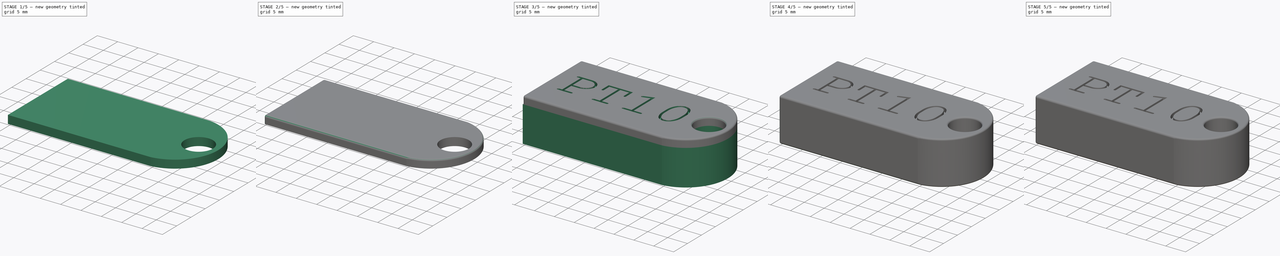
[diagram: build sequence overview — one tinted view per stage of 5, left to right]
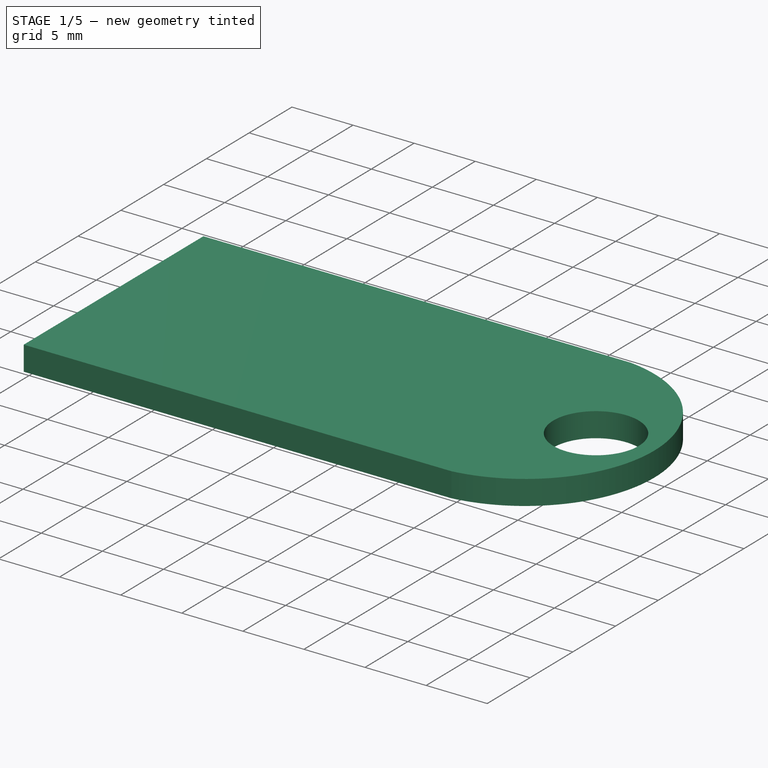
[diagram: stage 1 of 5 — iso view after this stage's code; geometry added in this stage tinted green]
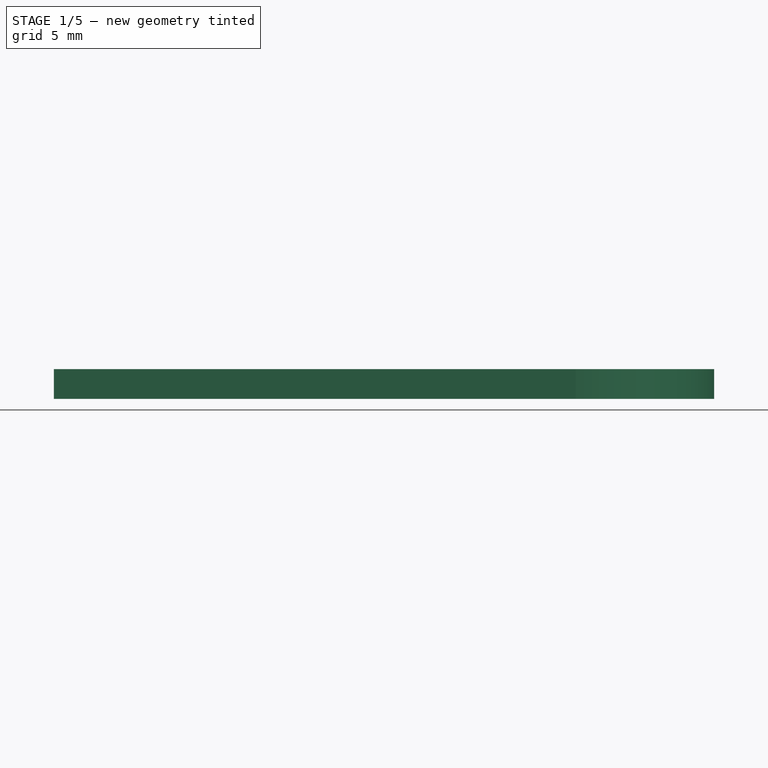
[diagram: stage 1 of 5 — front view after this stage's code; geometry added in this stage tinted green]
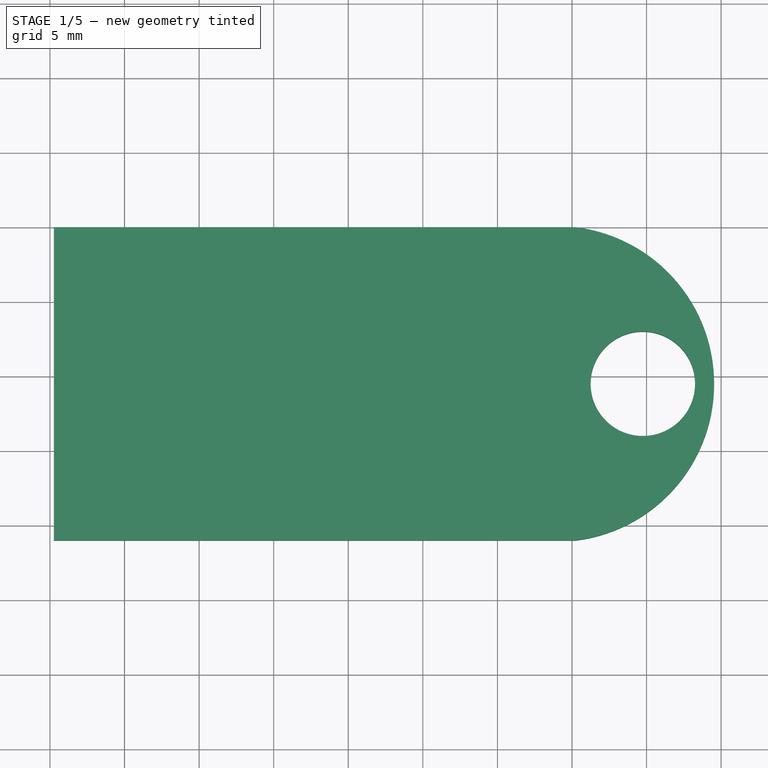
[diagram: stage 1 of 5 — top view after this stage's code; geometry added in this stage tinted green]
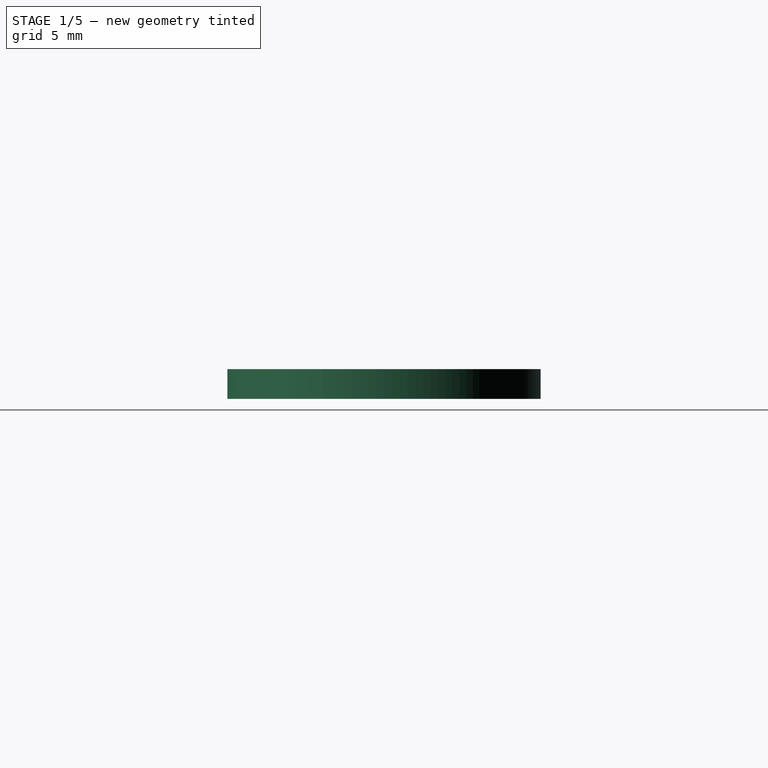
[diagram: stage 1 of 5 — right view after this stage's code; geometry added in this stage tinted green]
FCSTD DOCUMENT  (FreeCAD 0.19R24276 (Git))
Label: VaultBox1
License: All rights reserved
LicenseURL: http://en.wikipedia.org/wiki/All_rights_reserved
objects: PartDesign::Fillet×14, PartDesign::ShapeBinder×10, PartDesign::Line×7, Sketcher::SketchObject×5, PartDesign::Pad×3, PartDesign::Pocket×3, PartDesign::Body×2, PartDesign::Point×1, Part::Part2DObjectPython×1
note: 66 computed .brp shape members not serialized (recipe doc carries the construction recipe); baked Part::Feature solids carry a one-line shape summary decoded from their .brp

FEATURE [Sketcher::SketchObject] Sketch
  FullyConstrained = false
  MapMode = 5
  Support = -> [XY_Plane]
  sketch-geometry (11):
    g0: LineSegment StartX=0 StartY=19 StartZ=0 EndX=0 EndY=0 EndZ=0
    g1: LineSegment StartX=0.0308094 StartY=9.5 StartZ=0 EndX=9.53081 EndY=9.5 EndZ=0
    g2: Circle CenterX=4.75001 CenterY=9.5 CenterZ=0 NormalX=0 NormalY=0 NormalZ=1 AngleXU=0 Radius=3.5
    g3: LineSegment StartX=-34.7385 StartY=20 StartZ=0 EndX=0.261512 EndY=20 EndZ=0
    g4: LineSegment StartX=0.261512 StartY=-1 StartZ=0 EndX=-34.7385 EndY=-1 EndZ=0
    g5: LineSegment StartX=-34.7385 StartY=-1 StartZ=0 EndX=-34.7385 EndY=20 EndZ=0
    g6: LineSegment StartX=1.48918e-05 StartY=9.5 StartZ=0 EndX=-34.7385 EndY=9.5 EndZ=0
    g7: LineSegment StartX=-34 StartY=19 StartZ=0 EndX=-34.7385 EndY=20 EndZ=0
    g8: LineSegment StartX=-34.7385 StartY=20 StartZ=0 EndX=-34.7385 EndY=19.2427 EndZ=0
    g9: LineSegment StartX=-34.7385 StartY=19.2427 StartZ=0 EndX=-33.9812 EndY=19.2427 EndZ=0
    g10: ArcOfCircle CenterX=-1.05089 CenterY=9.5 CenterZ=0 NormalX=0 NormalY=0 NormalZ=1 AngleXU=0 Radius=10.5817 StartAngle=4.83674 EndAngle=7.72964
  constraints (25):
    c: Vertical(g0)
    c: DistanceY(g0,g0) = 19
    c: Coincident(g0,g-1)
    c: DistanceX(g1,g1) = 9.5
    c: Perpendicular(g0,g1)
    c: Radius(g2) = 3.5
    c: Coincident(g4,g5)
    c: Coincident(g5,g3)
    c: Horizontal(g3)
    c: Horizontal(g4)
    c: Vertical(g5)
    c: DistanceY(g5,g5) = 21
    c: Symmetric(g3,g4,g6)
    c: Vertical(g8)
    c: Coincident(g9,g8)
    c: Horizontal(g9)
    c: Equal(g9,g8)
    c: Coincident(g7,g8)
    c: Coincident(g3,g7)
    c: DistanceX(g3,g3) = 35
    c: Equal(g4,g3)
    c: Coincident(g10,g3)
    c: Coincident(g10,g4)
    c: PointOnObject(g1,g10)
    c: Perpendicular(g6,g5) = 4.71239
FEATURE [PartDesign::Pad] Pad
  Direction = (1,1,1)
  Length = 9
  Length2 = 100
  Profile = -> Sketch
  Type = 0
FEATURE [Sketcher::SketchObject] Sketch001
  ExternalGeometry = -> [Pad]
  FullyConstrained = true
  MapMode = 5
  Placement = pos=(0,0,9) rot=(0,0,1;0rad)
  Support = -> [Pad]
  sketch-geometry (6):
    g0: LineSegment StartX=-33.7385 StartY=19 StartZ=0 EndX=0.261512 EndY=19 EndZ=0
    g1: LineSegment StartX=0.261512 StartY=19 StartZ=0 EndX=0.261512 EndY=0 EndZ=0
    g2: LineSegment StartX=0.261512 StartY=0 StartZ=0 EndX=-33.7385 EndY=0 EndZ=0
    g3: LineSegment StartX=-33.7385 StartY=0 StartZ=0 EndX=-33.7385 EndY=19 EndZ=0
    g4: LineSegment StartX=-33.7385 StartY=19 StartZ=0 EndX=-34.7385 EndY=20 EndZ=0
    g5: LineSegment StartX=-34.7385 StartY=-1 StartZ=0 EndX=-33.7385 EndY=0 EndZ=0
  constraints (16):
    c: Coincident(g0,g1)
    c: Coincident(g1,g2)
    c: Coincident(g2,g3)
    c: Coincident(g3,g0)
    c: Horizontal(g0)
    c: Horizontal(g2)
    c: Vertical(g1)
    c: Vertical(g3)
    c: Coincident(g4,g0)
    c: Coincident(g4,g-3)
    c: Coincident(g5,g-3)
    c: Coincident(g5,g2)
    c: DistanceX(g4,g4) = 1
    c: DistanceY(g4,g4) = 1
    c: DistanceY(g5,g5) = 1
    c: DistanceX(g0,g0) = 34
FEATURE [PartDesign::Pocket] Pocket
  BaseFeature = -> Pad
  Length = 7
  Length2 = 100
  Profile = -> Sketch001
  Type = 0
FEATURE [Sketcher::SketchObject] Sketch002
  ExternalGeometry = -> [Pocket]
  FullyConstrained = true
  MapMode = 5
  Placement = pos=(-34.7385,0,0) rot=(0.57735,-0.57735,-0.57735;2.0944rad)
  Support = -> [Pocket]
  sketch-geometry (7):
    g0: LineSegment StartX=-13.5 StartY=7.5 StartZ=0 EndX=-5.5 EndY=7.5 EndZ=0
    g1: LineSegment StartX=-5.5 StartY=7.5 StartZ=0 EndX=-6 EndY=3 EndZ=0
    g2: LineSegment StartX=-6 StartY=3 StartZ=0 EndX=-13 EndY=3 EndZ=0
    g3: LineSegment StartX=-13 StartY=3 StartZ=0 EndX=-13.5 EndY=7.5 EndZ=0
    g4: LineSegment StartX=-13 StartY=3 StartZ=0 EndX=-20 EndY=0 EndZ=0
    g5: LineSegment StartX=-20 StartY=9 StartZ=0 EndX=-9.5 EndY=7.5 EndZ=0
    g6: LineSegment StartX=1 StartY=9 StartZ=0 EndX=-9.5 EndY=7.5 EndZ=0
  constraints (18):
    c: Coincident(g0,g1)
    c: Coincident(g1,g2)
    c: Coincident(g2,g3)
    c: Coincident(g3,g0)
    c: Horizontal(g0)
    c: Horizontal(g2)
    c: Coincident(g4,g2)
    c: Coincident(g4,g-4)
    c: DistanceY(g4,g4) = 3
    c: DistanceY(g3,g3) = 4.5
    c: DistanceX(g0,g0) = 8
    c: Coincident(g5,g-4)
    c: Coincident(g6,g-5)
    c: Coincident(g6,g5)
    c: Equal(g6,g5)
    c: Symmetric(g0,g0,g5)
    c: DistanceX(g2,g2) = 7
    c: Equal(g3,g1)
FEATURE [PartDesign::Pocket] Pocket001
  BaseFeature = -> Pocket
  Length = 2
  Length2 = 100
  Profile = -> Sketch002
  Type = 0
FEATURE [PartDesign::ShapeBinder] ReferencePocket001
  Support = -> [Pocket001]
  TraceSupport = false
FEATURE [PartDesign::ShapeBinder] ReferencePocket001001
  Placement = pos=(0,0,9) rot=(0,0,1;0rad)
  Support = -> [Pocket001]
  TraceSupport = false
FEATURE [PartDesign::Line] DatumLine004
  AttacherType = Attacher::AttachEngineLine
  Length = 20
  MapMode = 29
  Placement = pos=(-34.7385,0,9) rot=(0,0.707107,0.707107;3.14159rad)
  ResizeMode = 0
  Support = -> [ReferencePocket001001]
FEATURE [PartDesign::ShapeBinder] ReferencePocket001002
  Placement = pos=(0,0,9) rot=(0,0,1;0rad)
  Support = -> [Pocket001]
  TraceSupport = false
FEATURE [PartDesign::Line] DatumLine
  AttacherType = Attacher::AttachEngineLine
  Length = 20
  MapMode = 29
  Placement = pos=(0,-1,9) rot=(0.57735,-0.57735,-0.57735;2.0944rad)
  ResizeMode = 0
  Support = -> [ReferencePocket001002]
FEATURE [PartDesign::ShapeBinder] ReferencePocket001003
  Placement = pos=(0,0,9) rot=(0,0,1;0rad)
  Support = -> [Pocket001]
  TraceSupport = false
FEATURE [PartDesign::Line] DatumLine005
  AttacherType = Attacher::AttachEngineLine
  Length = 20
  MapMode = 29
  Placement = pos=(0,20,9) rot=(0.57735,0.57735,0.57735;2.0944rad)
  ResizeMode = 0
  Support = -> [ReferencePocket001003]
FEATURE [PartDesign::ShapeBinder] ReferencePocket001004
  Placement = pos=(0,0,9) rot=(0,0,1;0rad)
  Support = -> [Pocket001]
  TraceSupport = false
FEATURE [PartDesign::Point] DatumPoint
  AttacherType = Attacher::AttachEnginePoint
  MapMode = 36
  Placement = pos=(4.75001,9.5,9) rot=(1,0,0;1.5708rad)
  Support = -> [ReferencePocket001004]
FEATURE [Sketcher::SketchObject] Sketch003
  ExternalGeometry = -> [DatumLine004,DatumLine005,ReferencePocket001,DatumPoint]
  FullyConstrained = false
  MapMode = 5
  Placement = pos=(0,0,9) rot=(0,0,1;0rad)
  Support = -> [ReferencePocket001]
  sketch-geometry (5):
    g0: LineSegment StartX=-34.7385 StartY=20 StartZ=0 EndX=0.261512 EndY=20 EndZ=0
    g1: LineSegment StartX=-34.7385 StartY=20 StartZ=0 EndX=-34.7385 EndY=-1 EndZ=0
    g2: LineSegment StartX=-34.7385 StartY=-1 StartZ=0 EndX=0.261512 EndY=-1 EndZ=0
    g3: ArcOfCircle CenterX=-1.05089 CenterY=9.5 CenterZ=0 NormalX=0 NormalY=0 NormalZ=1 AngleXU=0 Radius=10.5817 StartAngle=4.83674 EndAngle=7.72964
    g4: Circle CenterX=4.75001 CenterY=9.5 CenterZ=0 NormalX=0 NormalY=0 NormalZ=1 AngleXU=0 Radius=3.5
  constraints (9):
    c: Coincident(g1,g0)
    c: Coincident(g1,g-6)
    c: Vertical(g1)
    c: Coincident(g2,g1)
    c: Coincident(g2,g-6)
    c: Coincident(g3,g0)
    c: Coincident(g3,g2)
    c: Tangent(g3,g-5)
    c: Coincident(g4,g-8)
FEATURE [PartDesign::ShapeBinder] ReferencePocket001005
  Placement = pos=(0,0,9) rot=(0,0,1;0rad)
  Support = -> [Pocket001]
  TraceSupport = false
FEATURE [PartDesign::Pad] Pad001
  Direction = (1,1,1)
  Length = 2
  Length2 = 100
  Profile = -> Sketch003
  Type = 0
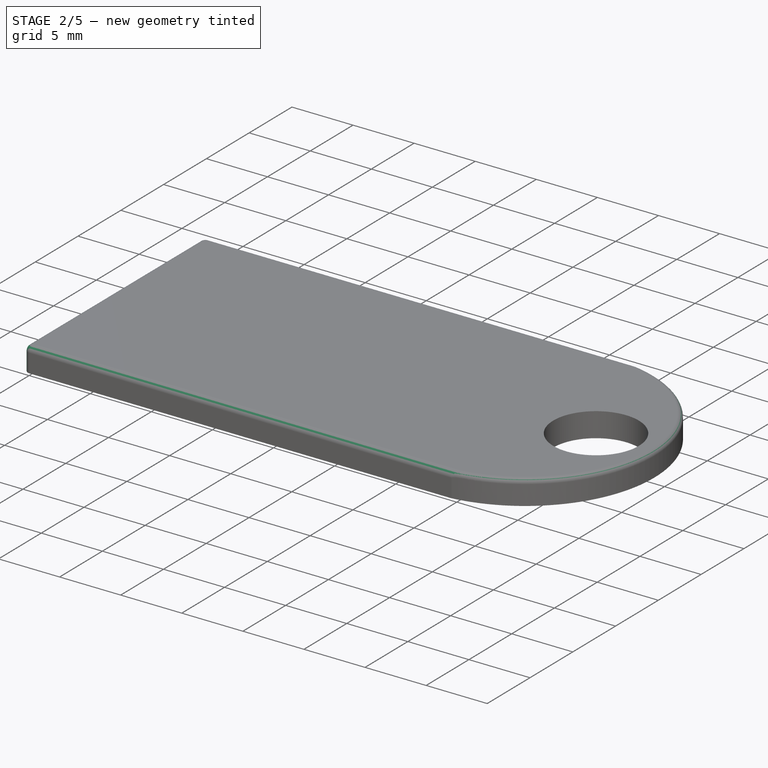
[diagram: stage 2 of 5 — iso view after this stage's code; geometry added in this stage tinted green]
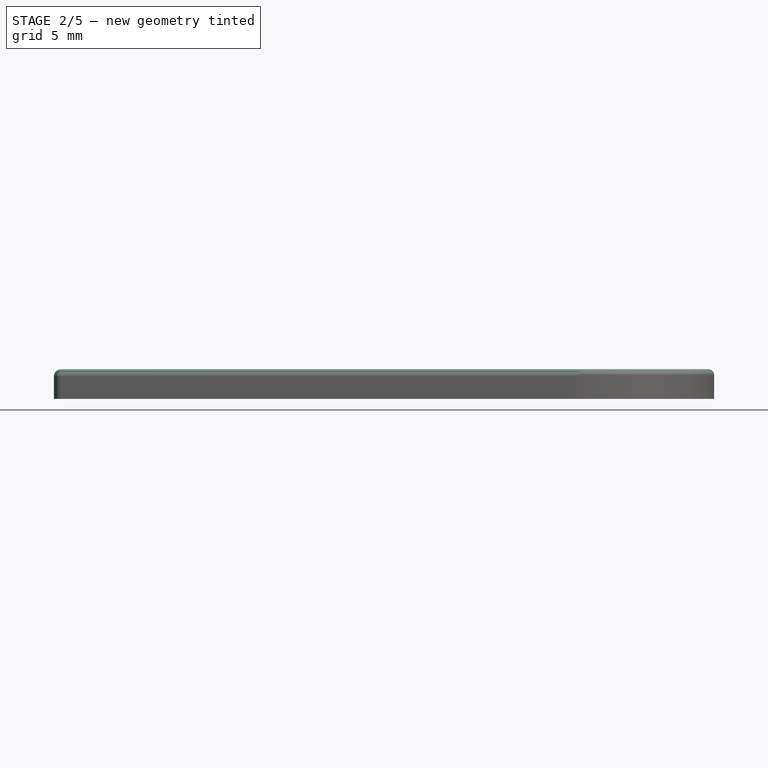
[diagram: stage 2 of 5 — front view after this stage's code; geometry added in this stage tinted green]
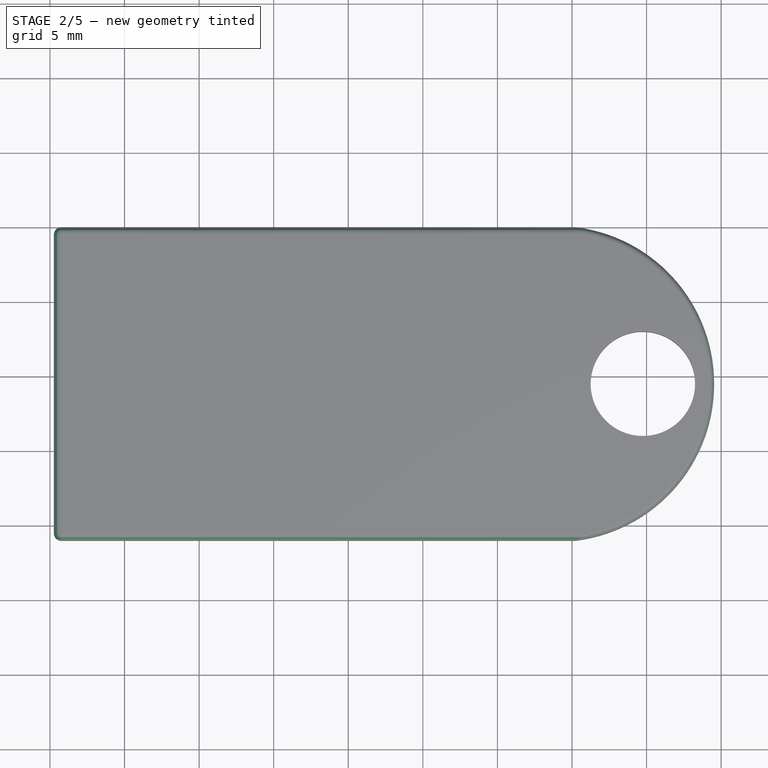
[diagram: stage 2 of 5 — top view after this stage's code; geometry added in this stage tinted green]
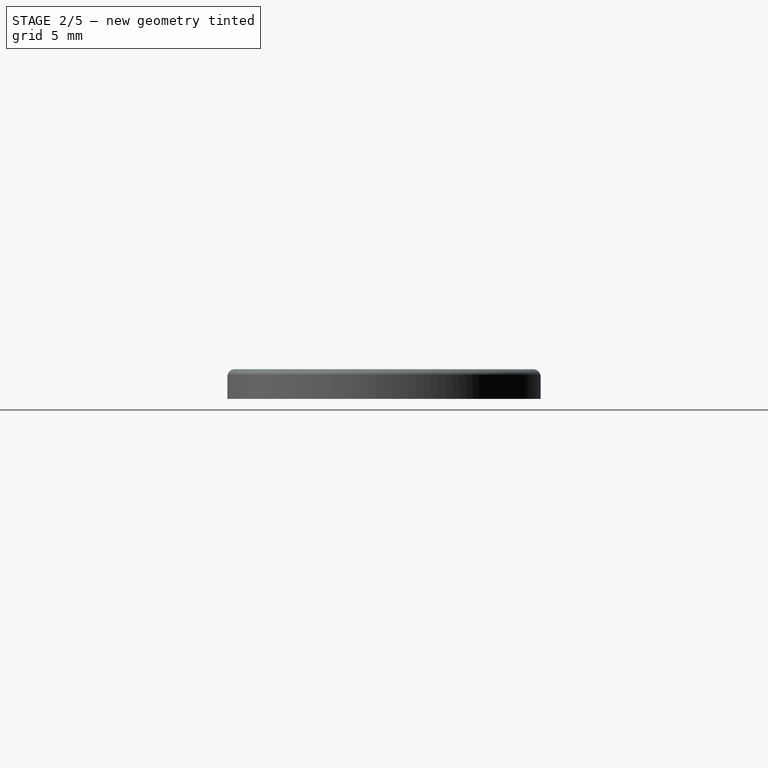
[diagram: stage 2 of 5 — right view after this stage's code; geometry added in this stage tinted green]
FEATURE [PartDesign::Fillet] Fillet
  Base = -> Pad001 [Edge12]
  BaseFeature = -> Pad001
  Radius = 0.5
  SupportTransform = false
FEATURE [PartDesign::Fillet] Fillet001
  Base = -> Fillet [Edge15]
  BaseFeature = -> Fillet
  Radius = 0.5
  SupportTransform = false
FEATURE [PartDesign::Fillet] Fillet002
  Base = -> Fillet001 [Edge12]
  BaseFeature = -> Fillet001
  Radius = 0.5
  SupportTransform = false
FEATURE [PartDesign::Fillet] Fillet003
  Base = -> Fillet002 [Edge24]
  BaseFeature = -> Fillet002
  Radius = 0.4
  SupportTransform = false
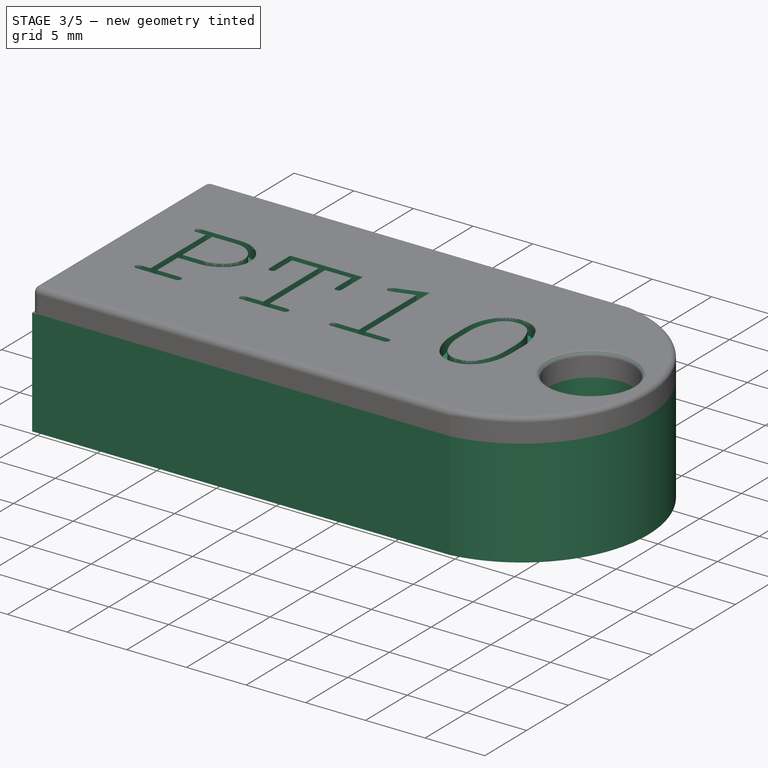
[diagram: stage 3 of 5 — iso view after this stage's code; geometry added in this stage tinted green]
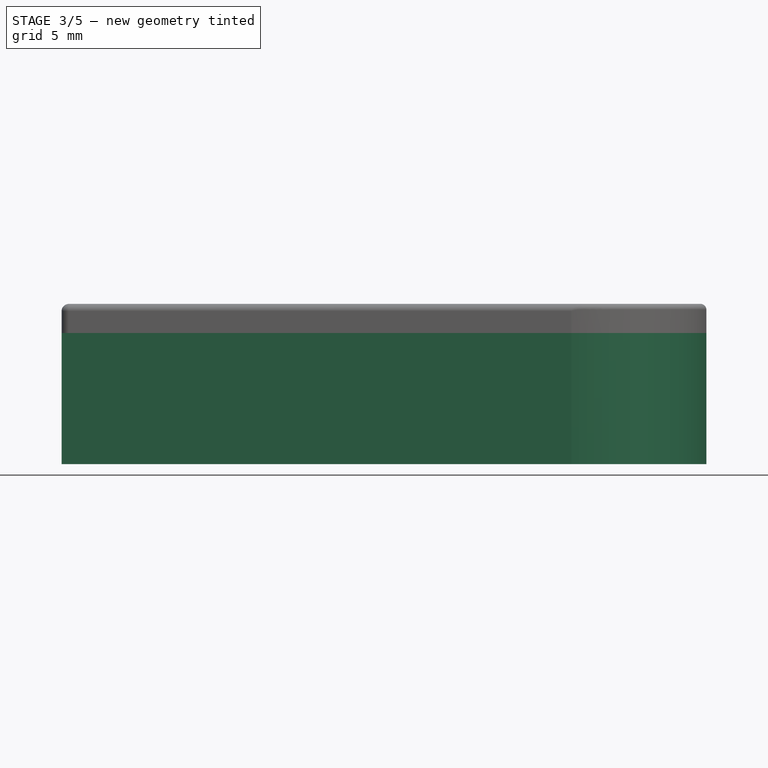
[diagram: stage 3 of 5 — front view after this stage's code; geometry added in this stage tinted green]
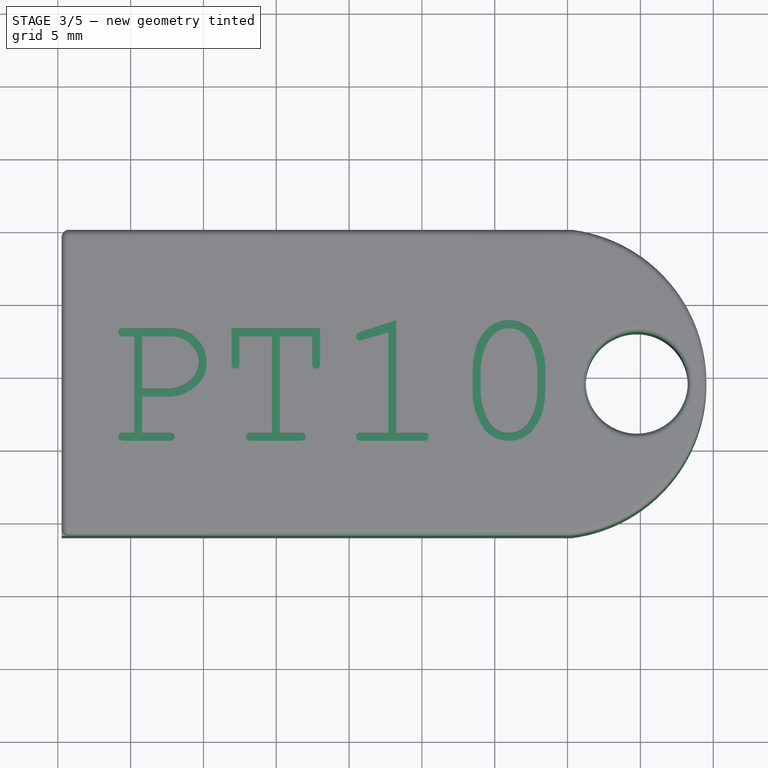
[diagram: stage 3 of 5 — top view after this stage's code; geometry added in this stage tinted green]
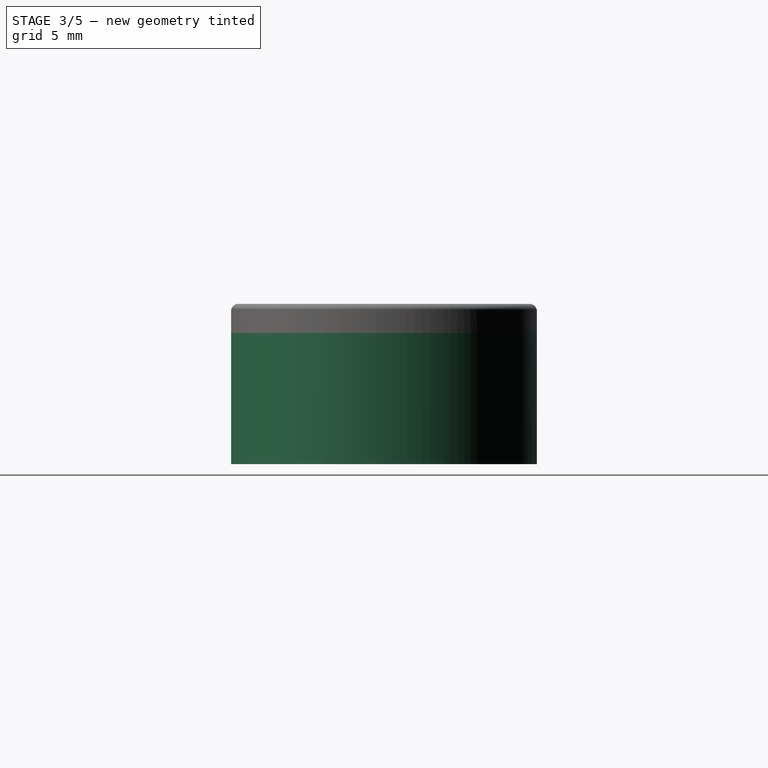
[diagram: stage 3 of 5 — right view after this stage's code; geometry added in this stage tinted green]
FEATURE [PartDesign::Fillet] Fillet004
  Base = -> Fillet003 [Edge31]
  BaseFeature = -> Fillet003
  Radius = 0.4
  SupportTransform = false
FEATURE [PartDesign::Fillet] Fillet005
  Base = -> Pocket001 [Edge10]
  BaseFeature = -> Pocket001
  Radius = 0.5
  SupportTransform = false
FEATURE [PartDesign::Body] Body
  Group = -> [Sketch,Pad,Sketch001,Pocket,Sketch002,Pocket001,Fillet005,Fillet006,Fillet007,Fillet008,Fillet009,Fillet010,Fillet011,Fillet012,Fillet013]
  Origin = -> Origin
  Tip = -> Fillet013
FEATURE [Part::Part2DObjectPython] ShapeString  # Draft 2D object (typed FeaturePython)
  FontFile = <path>
  Placement = pos=(-32,5.5,11) rot=(0,0,1;0rad)
  Size = 10
  String = PT10
  Tracking = 0
FEATURE [PartDesign::Pocket] Pocket002
  BaseFeature = -> Fillet004
  Length = 1
  Length2 = 100
  Profile = -> ShapeString
  Type = 0
FEATURE [PartDesign::ShapeBinder] CopyFillet013
  Placement = pos=(0,0,9) rot=(0,0,1;0rad)
  TraceSupport = false
FEATURE [PartDesign::Line] DatumLine006
  AttacherType = Attacher::AttachEngineLine
  Length = 20
  MapMode = 29
  Placement = pos=(0,19,9) rot=(0.57735,0.57735,0.57735;2.0944rad)
  ResizeMode = 0
  Support = -> [CopyFillet013]
FEATURE [PartDesign::ShapeBinder] CopyFillet013001
  Placement = pos=(0,0,9) rot=(0,0,1;0rad)
  TraceSupport = false
FEATURE [PartDesign::Line] DatumLine007
  AttacherType = Attacher::AttachEngineLine
  Length = 20
  MapMode = 29
  Placement = pos=(-33.7385,0,9) rot=(0,0.707107,0.707107;3.14159rad)
  ResizeMode = 0
  Support = -> [CopyFillet013001]
FEATURE [PartDesign::ShapeBinder] CopyFillet013002
  Placement = pos=(0,0,9) rot=(0,0,1;0rad)
  TraceSupport = false
FEATURE [PartDesign::Line] DatumLine008
  AttacherType = Attacher::AttachEngineLine
  Length = 20
  MapMode = 29
  Placement = pos=(0.261512,0,9) rot=(1,0,0;1.5708rad)
  ResizeMode = 0
  Support = -> [CopyFillet013002]
FEATURE [PartDesign::ShapeBinder] CopyFillet013003
  Placement = pos=(0,0,9) rot=(0,0,1;0rad)
  TraceSupport = false
FEATURE [PartDesign::Line] DatumLine009
  AttacherType = Attacher::AttachEngineLine
  Length = 20
  MapMode = 29
  Placement = pos=(0,0,9) rot=(0.57735,-0.57735,-0.57735;2.0944rad)
  ResizeMode = 0
  Support = -> [CopyFillet013003]
FEATURE [Sketcher::SketchObject] Sketch004
  ExternalGeometry = -> [DatumLine007,DatumLine009,DatumLine008,DatumLine006]
  FullyConstrained = true
  MapMode = 5
  Placement = pos=(0,0,9) rot=(1,0,0;3.14159rad)
  Support = -> [Pocket002]
  sketch-geometry (13):
    g0: LineSegment StartX=-33.2385 StartY=-0.5 StartZ=0 EndX=-0.238488 EndY=-0.5 EndZ=0
    g1: LineSegment StartX=-0.238488 StartY=-0.5 StartZ=0 EndX=-0.238488 EndY=-18.5 EndZ=0
    g2: LineSegment StartX=-0.238488 StartY=-18.5 StartZ=0 EndX=-33.2385 EndY=-18.5 EndZ=0
    g3: LineSegment StartX=-33.2385 StartY=-18.5 StartZ=0 EndX=-33.2385 EndY=-0.5 EndZ=0
    g4: LineSegment StartX=-33.2385 StartY=-0.5 StartZ=0 EndX=-33.7385 EndY=0 EndZ=0
    g5: LineSegment StartX=-0.238488 StartY=-0.5 StartZ=0 EndX=0.261512 EndY=0 EndZ=0
    g6: LineSegment StartX=-0.238488 StartY=-18.5 StartZ=0 EndX=0.261512 EndY=-19 EndZ=0
    g7: LineSegment StartX=-32.2385 StartY=-1.5 StartZ=0 EndX=-1.23849 EndY=-1.5 EndZ=0
    g8: LineSegment StartX=-1.23849 StartY=-1.5 StartZ=0 EndX=-1.23849 EndY=-17.5 EndZ=0
    g9: LineSegment StartX=-1.23849 StartY=-17.5 StartZ=0 EndX=-32.2385 EndY=-17.5 EndZ=0
    g10: LineSegment StartX=-32.2385 StartY=-17.5 StartZ=0 EndX=-32.2385 EndY=-1.5 EndZ=0
    g11: LineSegment StartX=-1.23849 StartY=-1.5 StartZ=0 EndX=-0.238488 EndY=-0.5 EndZ=0
    g12: LineSegment StartX=-33.2385 StartY=-18.5 StartZ=0 EndX=-32.2385 EndY=-17.5 EndZ=0
  constraints (37):
    c: Coincident(g0,g1)
    c: Coincident(g1,g2)
    c: Coincident(g2,g3)
    c: Coincident(g3,g0)
    c: Horizontal(g0)
    c: Horizontal(g2)
    c: Vertical(g1)
    c: Vertical(g3)
    c: Coincident(g4,g0)
    c: PointOnObject(g4,g-1)
    c: PointOnObject(g4,g-3)
    c: DistanceX(g4,g4) = 0.5
    c: DistanceY(g4,g4) = 0.5
    c: Coincident(g5,g0)
    c: PointOnObject(g5,g-5)
    c: PointOnObject(g5,g-4)
    c: DistanceX(g5,g5) = 0.5
    c: Coincident(g6,g1)
    c: PointOnObject(g6,g-6)
    c: PointOnObject(g6,g-5)
    c: DistanceY(g6,g6) = 0.5
    c: Coincident(g7,g8)
    c: Coincident(g8,g9)
    c: Coincident(g9,g10)
    c: Coincident(g10,g7)
    c: Horizontal(g7)
    c: Horizontal(g9)
    c: Vertical(g8)
    c: Vertical(g10)
    c: Coincident(g11,g7)
    c: Coincident(g11,g0)
    c: Coincident(g12,g2)
    c: Coincident(g12,g9)
    c: DistanceY(g12,g12) = 1
    c: DistanceX(g12,g12) = 1
    c: DistanceX(g11,g11) = 1
    c: DistanceY(g11,g11) = 1
FEATURE [PartDesign::Pad] Pad002
  BaseFeature = -> Pocket002
  Direction = (1,1,1)
  Length = 1
  Length2 = 100
  Profile = -> Sketch004
  Type = 0
FEATURE [PartDesign::Body] Body001  label="Top"
  Group = -> [ReferencePocket001,Sketch003,DatumLine004,ReferencePocket001001,DatumLine,ReferencePocket001002,DatumLine005,ReferencePocket001003,DatumPoint,ReferencePocket001004,ReferencePocket001005,Pad001,Fillet,Fillet001,Fillet002,Fillet003,Fillet004,ShapeString,Pocket002,DatumLine006,CopyFillet013,DatumLine007,CopyFillet013001,DatumLine008,CopyFillet013002,DatumLine009,CopyFillet013003,Sketch004,Pad002]
  Origin = -> Origin001
  Tip = -> Pad002
note: 1 file-system path scrubbed to <path> (originals preserved in the JSON sidecar)
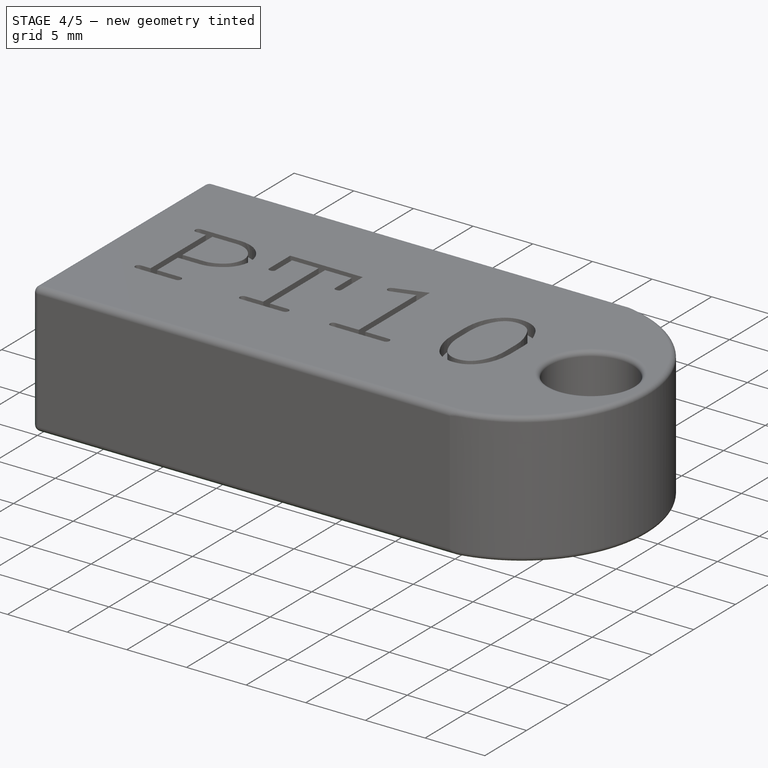
[diagram: stage 4 of 5 — iso view after this stage's code; geometry added in this stage tinted green]
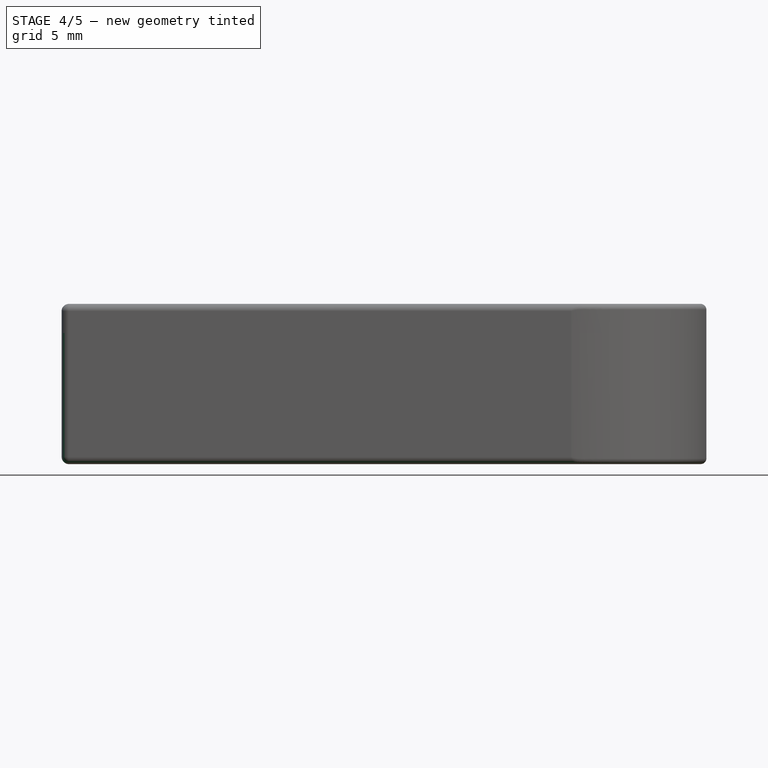
[diagram: stage 4 of 5 — front view after this stage's code; geometry added in this stage tinted green]
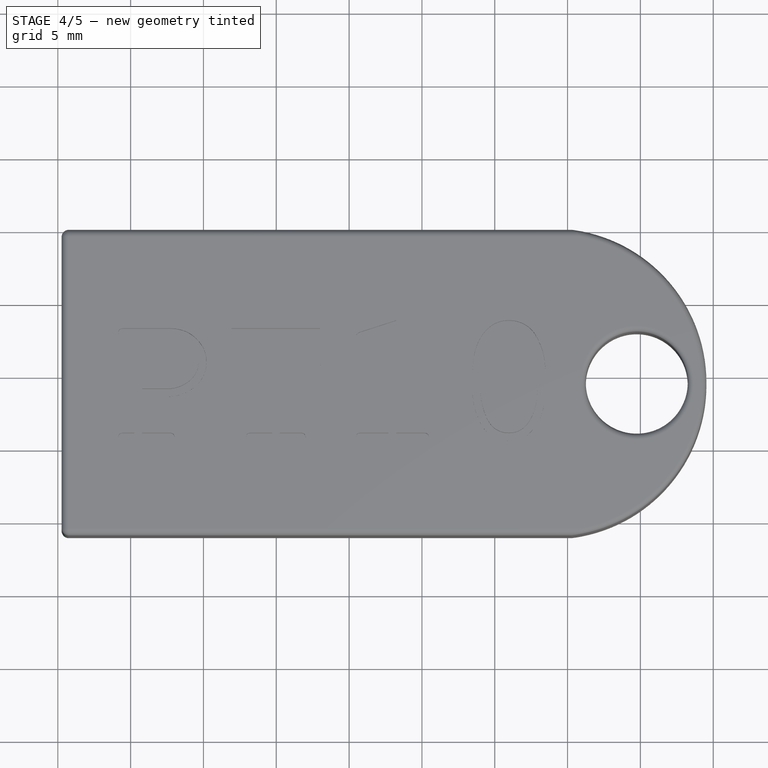
[diagram: stage 4 of 5 — top view after this stage's code; geometry added in this stage tinted green]
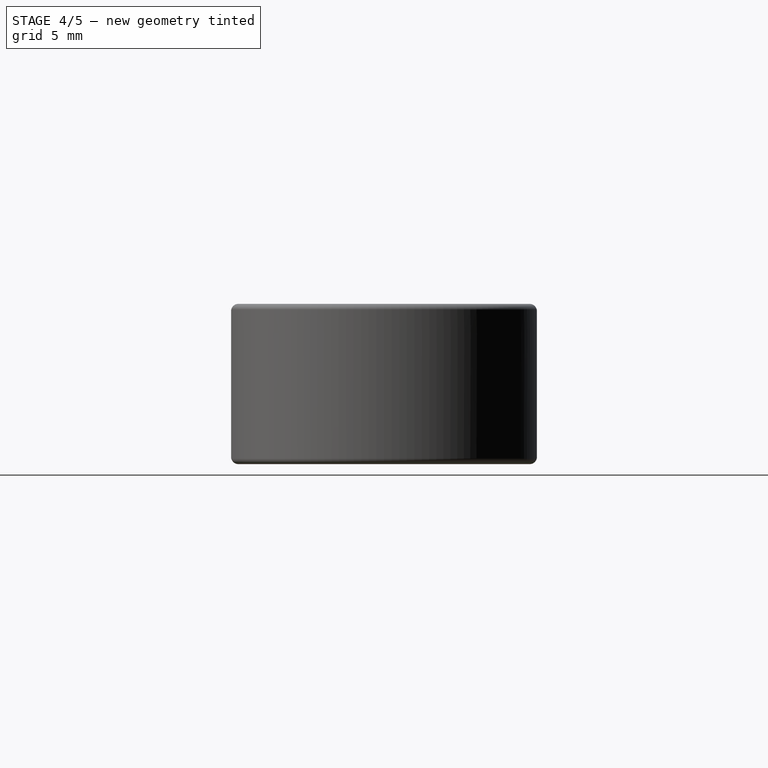
[diagram: stage 4 of 5 — right view after this stage's code; geometry added in this stage tinted green]
FEATURE [PartDesign::Fillet] Fillet006
  Base = -> Fillet005 [Edge11]
  BaseFeature = -> Fillet005
  Radius = 0.5
  SupportTransform = false
FEATURE [PartDesign::Fillet] Fillet007
  Base = -> Fillet006 [Edge23]
  BaseFeature = -> Fillet006
  Radius = 0.5
  SupportTransform = false
FEATURE [PartDesign::Fillet] Fillet008
  Base = -> Fillet007 [Edge36]
  BaseFeature = -> Fillet007
  Radius = 0.4
  SupportTransform = false
FEATURE [PartDesign::Fillet] Fillet009
  Base = -> Fillet008 [Edge39]
  BaseFeature = -> Fillet008
  Radius = 0.4
  SupportTransform = false
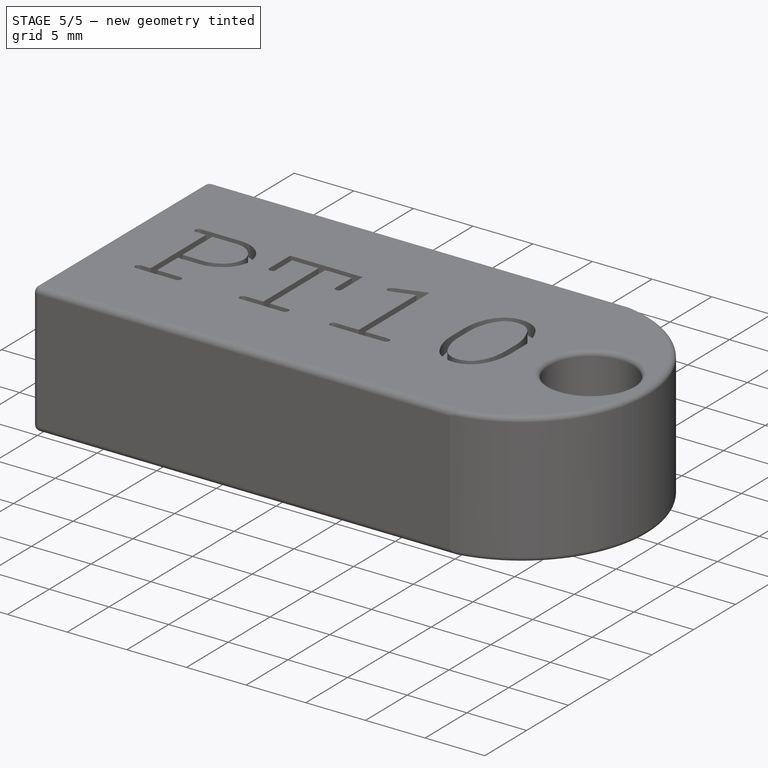
[diagram: stage 5 of 5 — iso view after this stage's code; geometry added in this stage tinted green]
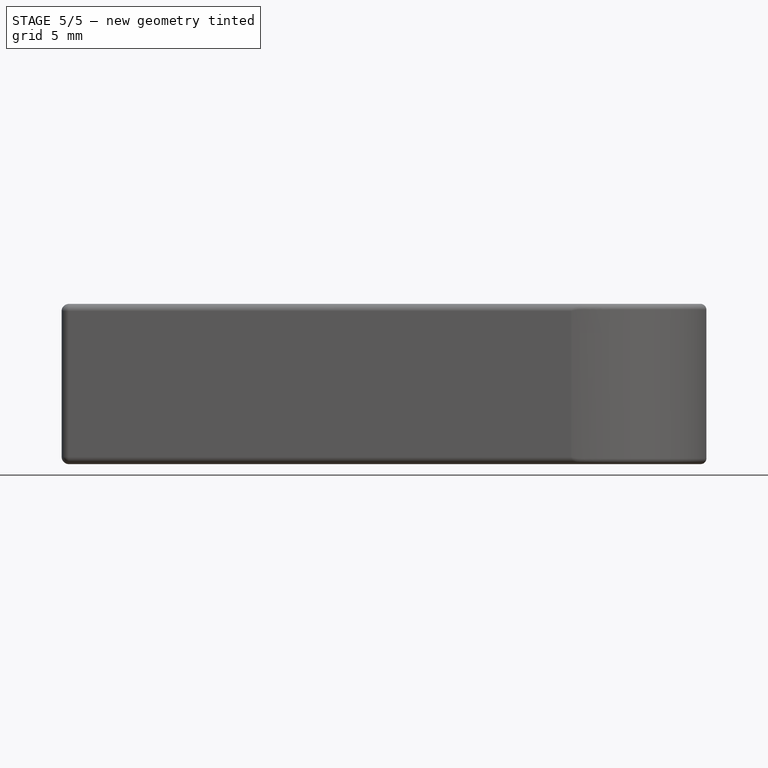
[diagram: stage 5 of 5 — front view after this stage's code; geometry added in this stage tinted green]
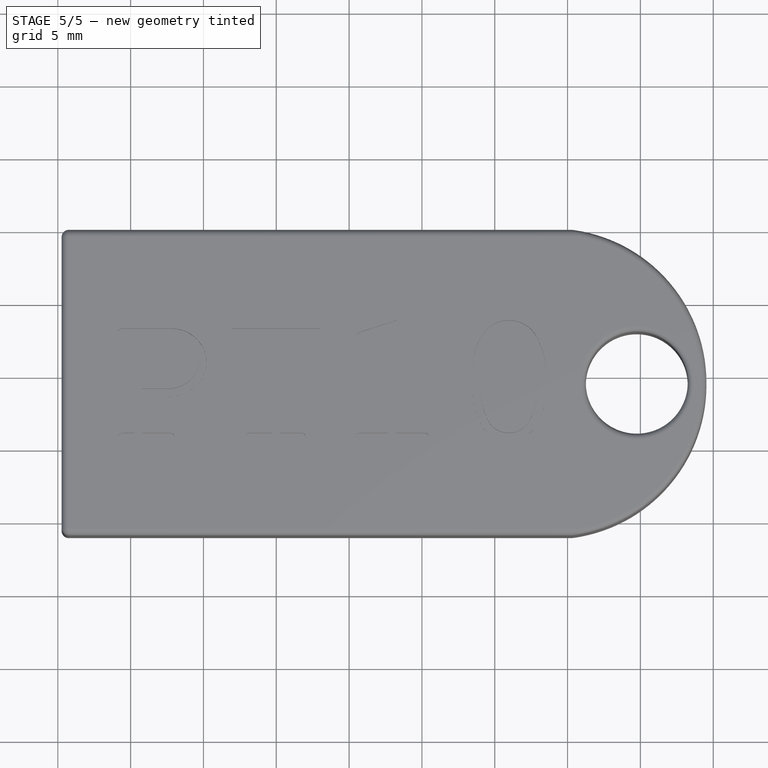
[diagram: stage 5 of 5 — top view after this stage's code; geometry added in this stage tinted green]
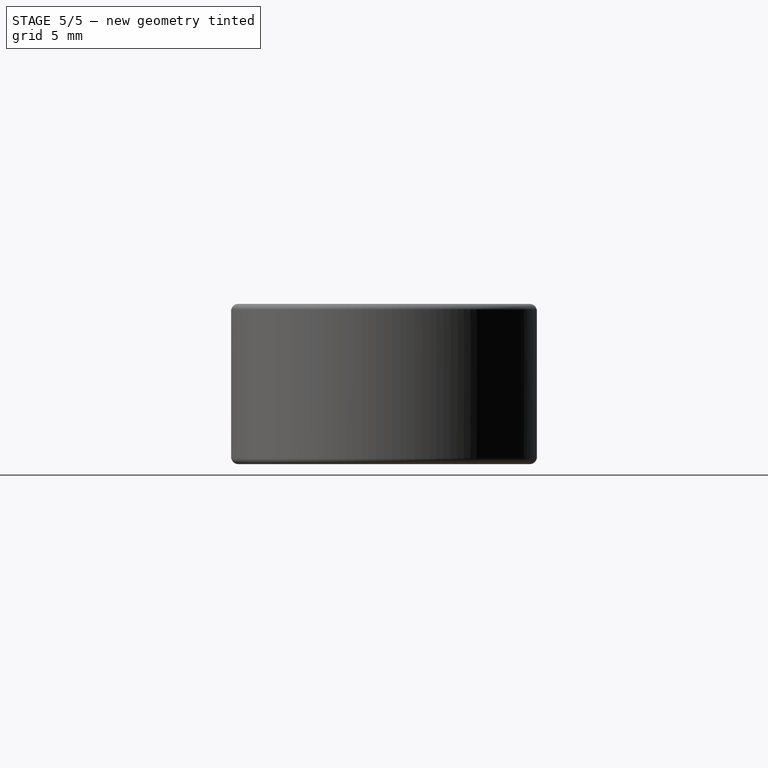
[diagram: stage 5 of 5 — right view after this stage's code; geometry added in this stage tinted green]
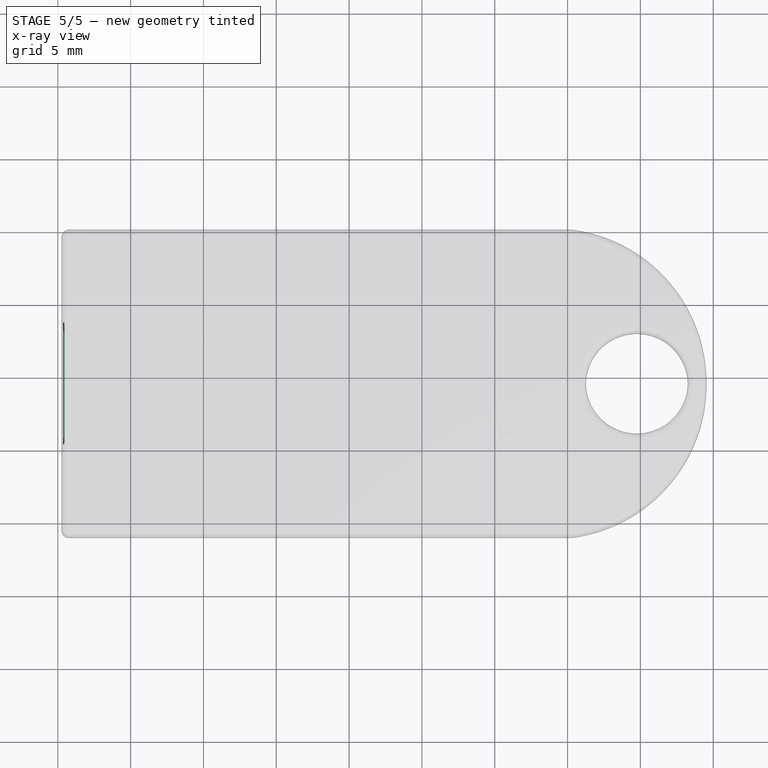
[diagram: stage 5 of 5 — x-ray composite at the top view; earlier geometry ghosted, this stage's added geometry solid]
FEATURE [PartDesign::Fillet] Fillet010
  Base = -> Fillet009 [Edge40]
  BaseFeature = -> Fillet009
  Radius = 0.5
  SupportTransform = false
FEATURE [PartDesign::Fillet] Fillet011
  Base = -> Fillet010 [Edge2]
  BaseFeature = -> Fillet010
  Radius = 0.5
  SupportTransform = false
FEATURE [PartDesign::Fillet] Fillet012
  Base = -> Fillet011 [Edge4]
  BaseFeature = -> Fillet011
  Radius = 0.5
  SupportTransform = false
FEATURE [PartDesign::Fillet] Fillet013
  Base = -> Fillet012 [Edge9]
  BaseFeature = -> Fillet012
  Radius = 0.5
  SupportTransform = false
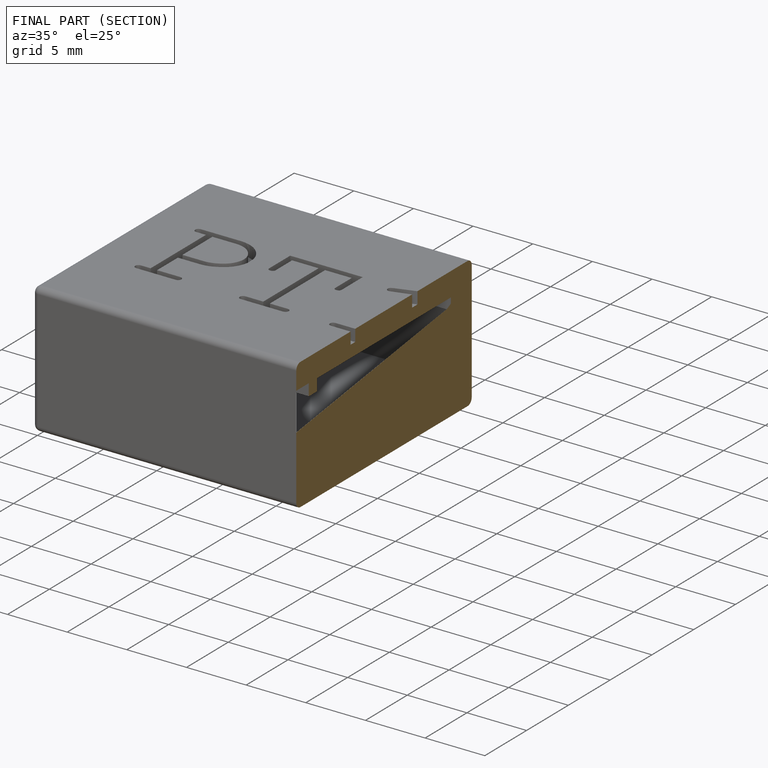
[diagram: finished part — half-section view (interior)]
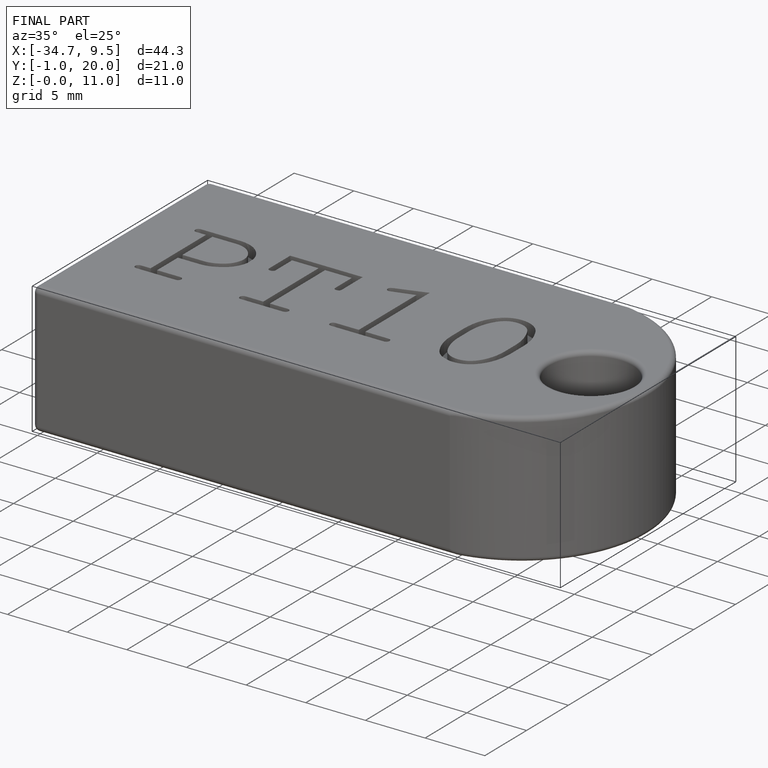
[diagram: finished part — iso view with bounding-box wireframe]
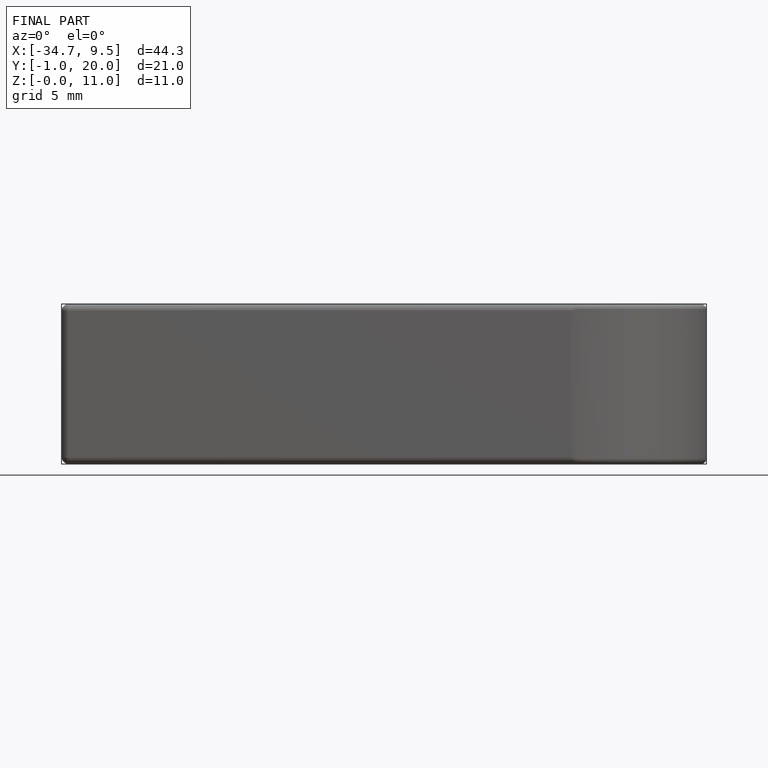
[diagram: finished part — front view with bounding-box wireframe]
